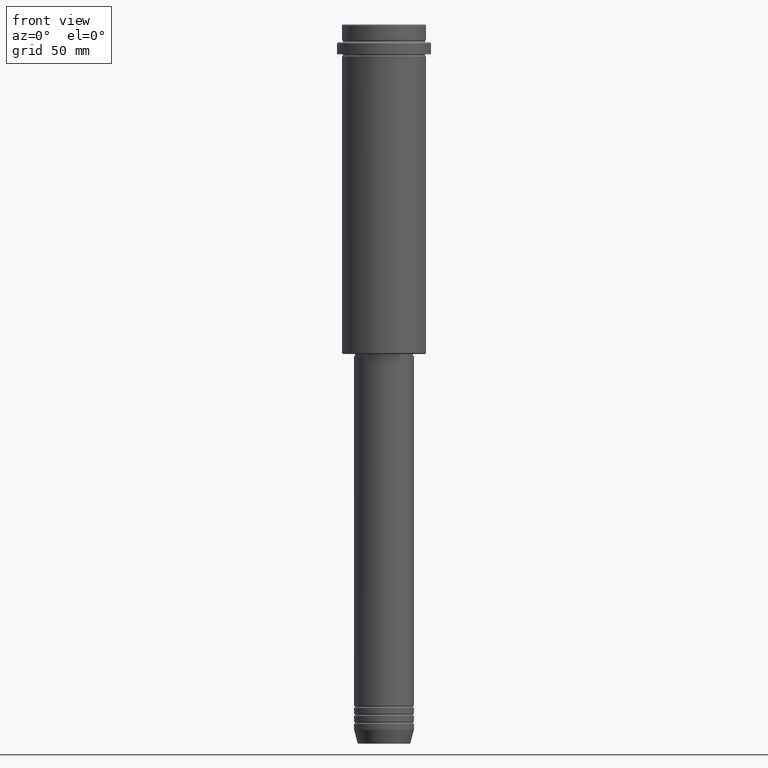
[diagram: clean part render]
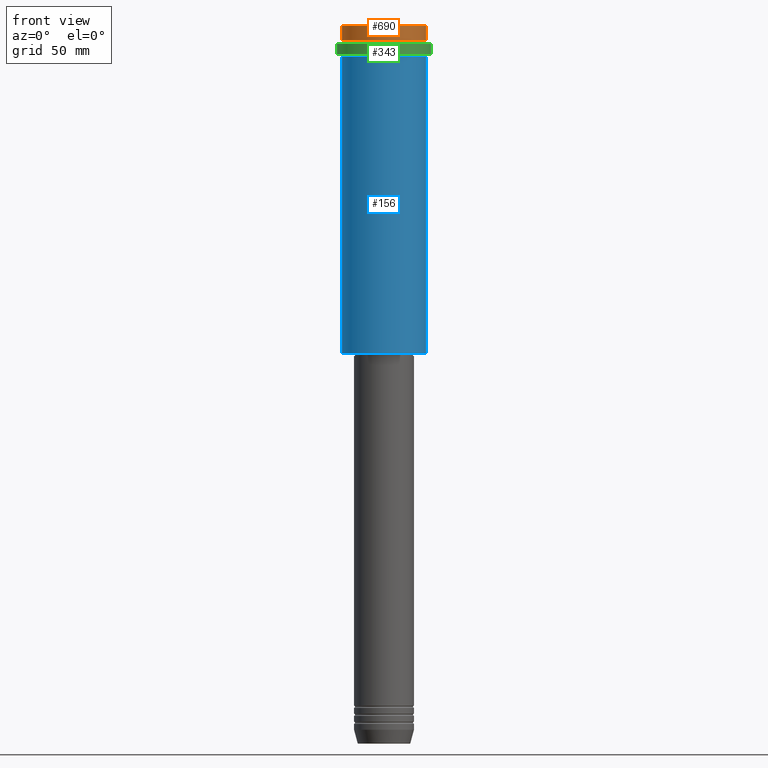
[diagram: same view with three faces highlighted in distinct colors, each labeled with its STEP entity id]
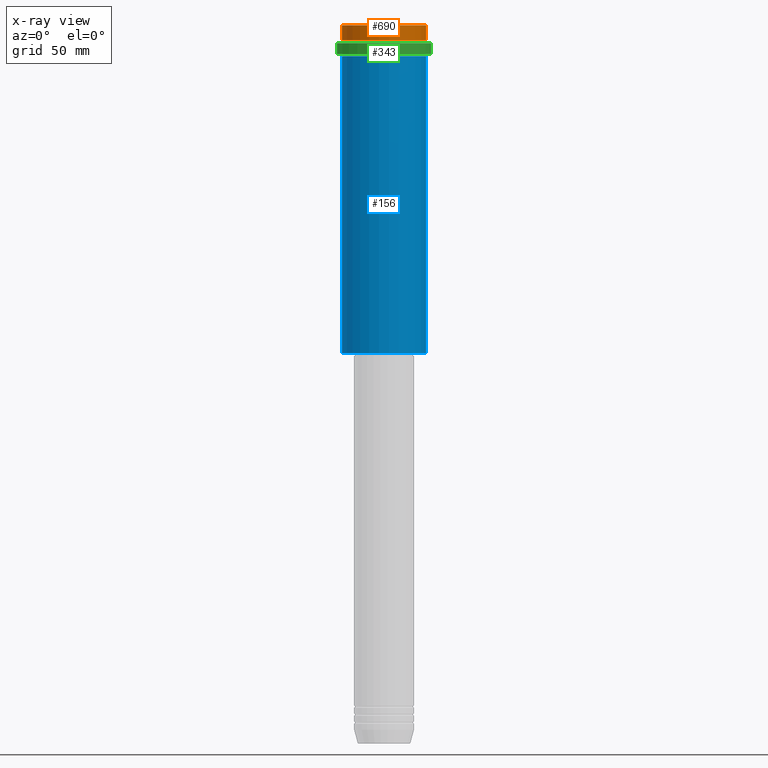
[diagram: x-ray of the same camera — body ghosted, the three highlighted faces saturated]
A machine part, front view with three faces highlighted in distinct colors.
The next image is the same camera in x-ray (body ghosted, the three faces saturated) — at least one of them is partly hidden behind the body in this view.
Their STEP definitions:

[orange] entity #690 — the highlighted cylindrical surface (partial cylindrical patch) has radius 21 mm, axis along (-0, -0, 1).
#36 = EDGE_CURVE ( 'NONE', #1095, #501, #623, .T. ) ;
#58 = DIRECTION ( 'NONE',  ( -0.000000000000000000, -0.000000000000000000, 1.000000000000000000 ) ) ;
#87 = EDGE_CURVE ( 'NONE', #1054, #649, #725, .T. ) ;
#114 = DIRECTION ( 'NONE',  ( -0.000000000000000000, -0.000000000000000000, 1.000000000000000000 ) ) ;
#185 = CIRCLE ( 'NONE', #508, 20.99999999999999645 ) ;
#196 = CARTESIAN_POINT ( 'NONE',  ( 0.000000000000000000, 0.000000000000000000, -7.999999999999998224 ) ) ;
#236 = CARTESIAN_POINT ( 'NONE',  ( 20.99999999999999645, 0.000000000000000000, -0.4999999999999241163 ) ) ;
#327 = FACE_OUTER_BOUND ( 'NONE', #888, .T. ) ;
#468 = CARTESIAN_POINT ( 'NONE',  ( 0.000000000000000000, 0.000000000000000000, 0.000000000000000000 ) ) ;
#488 = DIRECTION ( 'NONE',  ( 1.000000000000000000, 0.000000000000000000, 0.000000000000000000 ) ) ;
#501 = VERTEX_POINT ( 'NONE', #520 ) ;
#508 = AXIS2_PLACEMENT_3D ( 'NONE', #809, #1040, #488 ) ;
#520 = CARTESIAN_POINT ( 'NONE',  ( -20.99999999999999645, 2.571758278209441267E-15, -0.4999999999999241163 ) ) ;
#576 = VECTOR ( 'NONE', #1193, 1000.000000000000000 ) ;
#610 = EDGE_CURVE ( 'NONE', #1095, #1054, #677, .T. ) ;
#623 = LINE ( 'NONE', #1088, #576 ) ;
#643 = CARTESIAN_POINT ( 'NONE',  ( 20.99999999999999645, 0.000000000000000000, -7.999999999999998224 ) ) ;
#649 = VERTEX_POINT ( 'NONE', #236 ) ;
#675 = VECTOR ( 'NONE', #58, 1000.000000000000000 ) ;
#677 = CIRCLE ( 'NONE', #1286, 20.99999999999999645 ) ;
#687 = DIRECTION ( 'NONE',  ( 1.000000000000000000, 0.000000000000000000, 0.000000000000000000 ) ) ;
#690 = ADVANCED_FACE ( 'NONE', ( #327 ), #1105, .T. ) ;
#725 = LINE ( 'NONE', #1050, #675 ) ;
#788 = AXIS2_PLACEMENT_3D ( 'NONE', #468, #114, #687 ) ;
#809 = CARTESIAN_POINT ( 'NONE',  ( 0.000000000000000000, 0.000000000000000000, -0.4999999999999241163 ) ) ;
#822 = EDGE_CURVE ( 'NONE', #649, #501, #185, .T. ) ;
#888 = EDGE_LOOP ( 'NONE', ( #1084, #1071, #1001, #1108 ) ) ;
#1001 = ORIENTED_EDGE ( 'NONE', *, *, #87, .T. ) ;
#1040 = DIRECTION ( 'NONE',  ( 0.000000000000000000, 0.000000000000000000, -1.000000000000000000 ) ) ;
#1050 = CARTESIAN_POINT ( 'NONE',  ( 20.99999999999999645, 0.000000000000000000, 0.000000000000000000 ) ) ;
#1054 = VERTEX_POINT ( 'NONE', #643 ) ;
#1071 = ORIENTED_EDGE ( 'NONE', *, *, #610, .T. ) ;
#1077 = DIRECTION ( 'NONE',  ( -0.000000000000000000, -0.000000000000000000, 1.000000000000000000 ) ) ;
#1084 = ORIENTED_EDGE ( 'NONE', *, *, #36, .F. ) ;
#1088 = CARTESIAN_POINT ( 'NONE',  ( -20.99999999999999645, 2.571758278209441267E-15, 0.000000000000000000 ) ) ;
#1095 = VERTEX_POINT ( 'NONE', #1194 ) ;
#1105 = CYLINDRICAL_SURFACE ( 'NONE', #788, 20.99999999999999645 ) ;
#1108 = ORIENTED_EDGE ( 'NONE', *, *, #822, .T. ) ;
#1193 = DIRECTION ( 'NONE',  ( -0.000000000000000000, -0.000000000000000000, 1.000000000000000000 ) ) ;
#1194 = CARTESIAN_POINT ( 'NONE',  ( -20.99999999999999645, 2.571758278209441267E-15, -7.999999999999998224 ) ) ;
#1286 = AXIS2_PLACEMENT_3D ( 'NONE', #196, #1077, #1301 ) ;
#1301 = DIRECTION ( 'NONE',  ( 1.000000000000000000, 0.000000000000000000, 0.000000000000000000 ) ) ;

[blue] entity #156 — the highlighted cylindrical surface (partial cylindrical patch) has radius 21 mm, axis along (-0, -0, 1).
#24 = EDGE_LOOP ( 'NONE', ( #479, #1327, #1300, #1056 ) ) ;
#60 = VERTEX_POINT ( 'NONE', #1044 ) ;
#135 = FACE_OUTER_BOUND ( 'NONE', #24, .T. ) ;
#148 = CARTESIAN_POINT ( 'NONE',  ( -20.99999999999999645, 2.571758278209441267E-15, 0.000000000000000000 ) ) ;
#156 = ADVANCED_FACE ( 'NONE', ( #135 ), #562, .T. ) ;
#187 = DIRECTION ( 'NONE',  ( -0.000000000000000000, -0.000000000000000000, 1.000000000000000000 ) ) ;
#231 = VECTOR ( 'NONE', #764, 1000.000000000000000 ) ;
#257 = DIRECTION ( 'NONE',  ( -0.000000000000000000, -0.000000000000000000, 1.000000000000000000 ) ) ;
#286 = DIRECTION ( 'NONE',  ( -0.000000000000000000, -0.000000000000000000, 1.000000000000000000 ) ) ;
#305 = CARTESIAN_POINT ( 'NONE',  ( 20.99999999999999645, 0.000000000000000000, 0.000000000000000000 ) ) ;
#331 = CARTESIAN_POINT ( 'NONE',  ( 20.99999999999999645, 0.000000000000000000, -16.00000000000000355 ) ) ;
#370 = LINE ( 'NONE', #148, #1086 ) ;
#387 = CIRCLE ( 'NONE', #1136, 20.99999999999999645 ) ;
#389 = VERTEX_POINT ( 'NONE', #331 ) ;
#399 = LINE ( 'NONE', #305, #231 ) ;
#479 = ORIENTED_EDGE ( 'NONE', *, *, #863, .F. ) ;
#482 = AXIS2_PLACEMENT_3D ( 'NONE', #515, #187, #1414 ) ;
#499 = CARTESIAN_POINT ( 'NONE',  ( 0.000000000000000000, 0.000000000000000000, -164.5000000000001137 ) ) ;
#507 = CIRCLE ( 'NONE', #482, 20.99999999999999645 ) ;
#515 = CARTESIAN_POINT ( 'NONE',  ( 0.000000000000000000, 0.000000000000000000, -16.00000000000000355 ) ) ;
#562 = CYLINDRICAL_SURFACE ( 'NONE', #717, 20.99999999999999645 ) ;
#594 = EDGE_CURVE ( 'NONE', #60, #389, #507, .T. ) ;
#635 = DIRECTION ( 'NONE',  ( -1.000000000000000000, 0.000000000000000000, 0.000000000000000000 ) ) ;
#717 = AXIS2_PLACEMENT_3D ( 'NONE', #1367, #1160, #1387 ) ;
#741 = CARTESIAN_POINT ( 'NONE',  ( -20.99999999999999645, 2.571758278209441267E-15, -164.5000000000001137 ) ) ;
#764 = DIRECTION ( 'NONE',  ( -0.000000000000000000, -0.000000000000000000, 1.000000000000000000 ) ) ;
#842 = CARTESIAN_POINT ( 'NONE',  ( 20.99999999999999645, 0.000000000000000000, -164.5000000000001137 ) ) ;
#863 = EDGE_CURVE ( 'NONE', #921, #60, #370, .T. ) ;
#921 = VERTEX_POINT ( 'NONE', #741 ) ;
#968 = EDGE_CURVE ( 'NONE', #980, #389, #399, .T. ) ;
#980 = VERTEX_POINT ( 'NONE', #842 ) ;
#1044 = CARTESIAN_POINT ( 'NONE',  ( -20.99999999999999645, 2.571758278209441267E-15, -16.00000000000000355 ) ) ;
#1056 = ORIENTED_EDGE ( 'NONE', *, *, #594, .F. ) ;
#1086 = VECTOR ( 'NONE', #257, 1000.000000000000000 ) ;
#1136 = AXIS2_PLACEMENT_3D ( 'NONE', #499, #286, #635 ) ;
#1160 = DIRECTION ( 'NONE',  ( -0.000000000000000000, -0.000000000000000000, 1.000000000000000000 ) ) ;
#1300 = ORIENTED_EDGE ( 'NONE', *, *, #968, .T. ) ;
#1327 = ORIENTED_EDGE ( 'NONE', *, *, #1395, .T. ) ;
#1367 = CARTESIAN_POINT ( 'NONE',  ( 0.000000000000000000, 0.000000000000000000, 0.000000000000000000 ) ) ;
#1387 = DIRECTION ( 'NONE',  ( 1.000000000000000000, 0.000000000000000000, 0.000000000000000000 ) ) ;
#1395 = EDGE_CURVE ( 'NONE', #921, #980, #387, .T. ) ;
#1414 = DIRECTION ( 'NONE',  ( 1.000000000000000000, 0.000000000000000000, 0.000000000000000000 ) ) ;

[green] entity #343 — the highlighted cylindrical surface (partial cylindrical patch) has radius 23.5 mm, axis along (-0, -0, 1).
#9 = EDGE_CURVE ( 'NONE', #865, #435, #811, .T. ) ;
#25 = VECTOR ( 'NONE', #584, 1000.000000000000000 ) ;
#40 = ORIENTED_EDGE ( 'NONE', *, *, #9, .T. ) ;
#52 = CARTESIAN_POINT ( 'NONE',  ( 0.000000000000000000, 0.000000000000000000, -15.00000000000000178 ) ) ;
#84 = EDGE_CURVE ( 'NONE', #98, #132, #595, .T. ) ;
#98 = VERTEX_POINT ( 'NONE', #498 ) ;
#132 = VERTEX_POINT ( 'NONE', #883 ) ;
#150 = ORIENTED_EDGE ( 'NONE', *, *, #777, .T. ) ;
#261 = DIRECTION ( 'NONE',  ( 1.000000000000000000, 0.000000000000000000, 0.000000000000000000 ) ) ;
#273 = CARTESIAN_POINT ( 'NONE',  ( -23.50000000000000000, 2.877919977996280320E-15, 0.000000000000000000 ) ) ;
#339 = VECTOR ( 'NONE', #1030, 1000.000000000000000 ) ;
#343 = ADVANCED_FACE ( 'NONE', ( #899 ), #420, .T. ) ;
#364 = AXIS2_PLACEMENT_3D ( 'NONE', #52, #494, #261 ) ;
#392 = CARTESIAN_POINT ( 'NONE',  ( 23.50000000000000000, 0.000000000000000000, 0.000000000000000000 ) ) ;
#420 = CYLINDRICAL_SURFACE ( 'NONE', #972, 23.50000000000000000 ) ;
#435 = VERTEX_POINT ( 'NONE', #976 ) ;
#494 = DIRECTION ( 'NONE',  ( -0.000000000000000000, -0.000000000000000000, 1.000000000000000000 ) ) ;
#498 = CARTESIAN_POINT ( 'NONE',  ( -23.50000000000000711, 2.877919977996281109E-15, -15.00000000000000178 ) ) ;
#546 = DIRECTION ( 'NONE',  ( 0.000000000000000000, 0.000000000000000000, -1.000000000000000000 ) ) ;
#560 = EDGE_LOOP ( 'NONE', ( #1230, #150, #40, #887 ) ) ;
#571 = CARTESIAN_POINT ( 'NONE',  ( 0.000000000000000000, 0.000000000000000000, -9.500000000000001776 ) ) ;
#584 = DIRECTION ( 'NONE',  ( -0.000000000000000000, -0.000000000000000000, 1.000000000000000000 ) ) ;
#595 = LINE ( 'NONE', #273, #339 ) ;
#777 = EDGE_CURVE ( 'NONE', #98, #865, #1110, .T. ) ;
#786 = DIRECTION ( 'NONE',  ( -0.000000000000000000, -0.000000000000000000, 1.000000000000000000 ) ) ;
#811 = LINE ( 'NONE', #392, #25 ) ;
#865 = VERTEX_POINT ( 'NONE', #1356 ) ;
#883 = CARTESIAN_POINT ( 'NONE',  ( -23.50000000000000000, 2.877919977996280320E-15, -9.500000000000001776 ) ) ;
#887 = ORIENTED_EDGE ( 'NONE', *, *, #1134, .T. ) ;
#899 = FACE_OUTER_BOUND ( 'NONE', #560, .T. ) ;
#908 = CIRCLE ( 'NONE', #1316, 23.50000000000000000 ) ;
#972 = AXIS2_PLACEMENT_3D ( 'NONE', #1313, #786, #1189 ) ;
#976 = CARTESIAN_POINT ( 'NONE',  ( 23.50000000000000000, 0.000000000000000000, -9.500000000000001776 ) ) ;
#1011 = DIRECTION ( 'NONE',  ( 1.000000000000000000, 0.000000000000000000, 0.000000000000000000 ) ) ;
#1030 = DIRECTION ( 'NONE',  ( -0.000000000000000000, -0.000000000000000000, 1.000000000000000000 ) ) ;
#1110 = CIRCLE ( 'NONE', #364, 23.50000000000000355 ) ;
#1134 = EDGE_CURVE ( 'NONE', #435, #132, #908, .T. ) ;
#1189 = DIRECTION ( 'NONE',  ( 1.000000000000000000, 0.000000000000000000, 0.000000000000000000 ) ) ;
#1230 = ORIENTED_EDGE ( 'NONE', *, *, #84, .F. ) ;
#1313 = CARTESIAN_POINT ( 'NONE',  ( 0.000000000000000000, 0.000000000000000000, 0.000000000000000000 ) ) ;
#1316 = AXIS2_PLACEMENT_3D ( 'NONE', #571, #546, #1011 ) ;
#1356 = CARTESIAN_POINT ( 'NONE',  ( 23.50000000000000355, 0.000000000000000000, -15.00000000000000178 ) ) ;